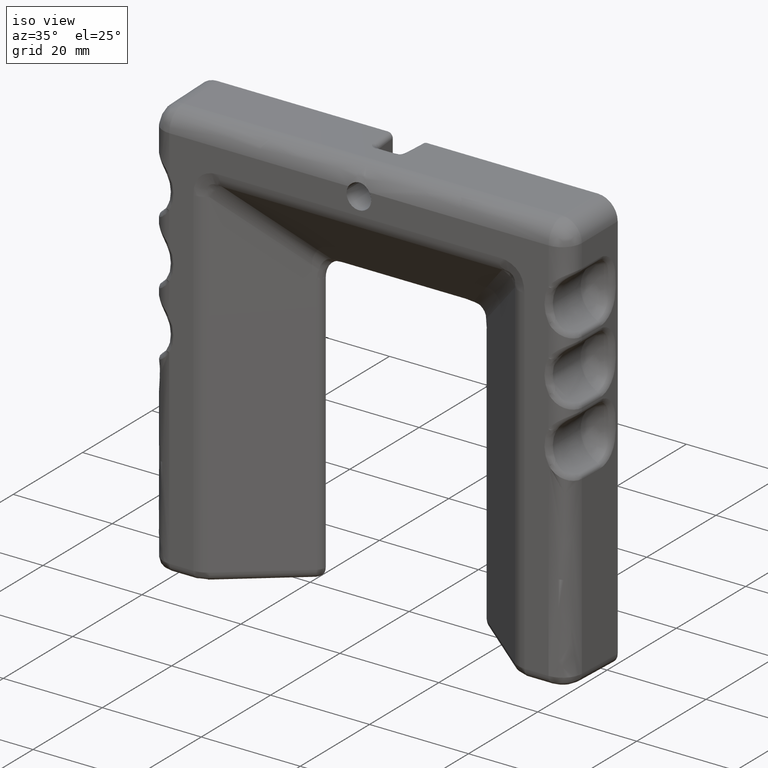
[diagram: clean part render]
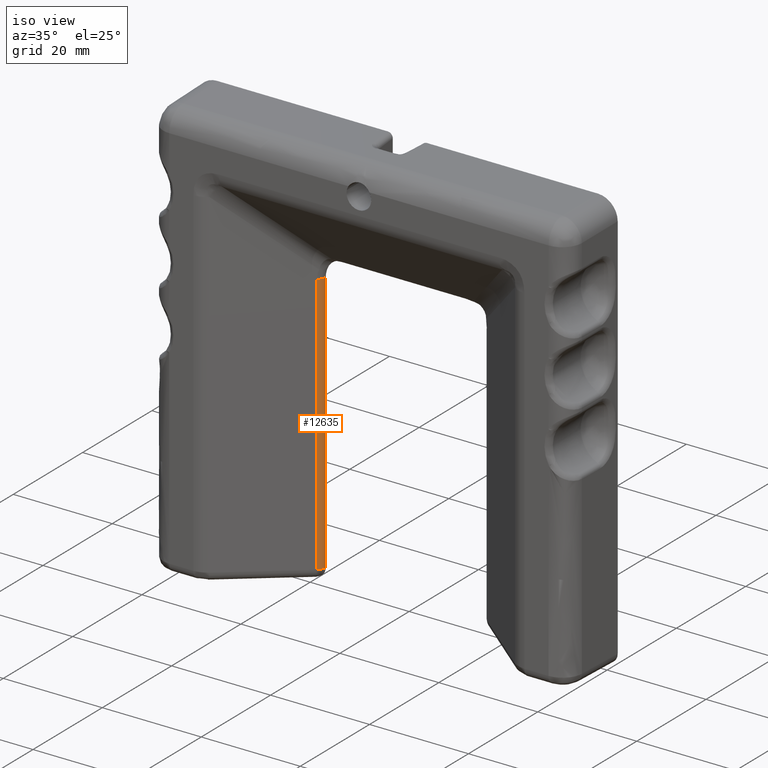
[diagram: same view with one face highlighted and labeled with its STEP entity id]
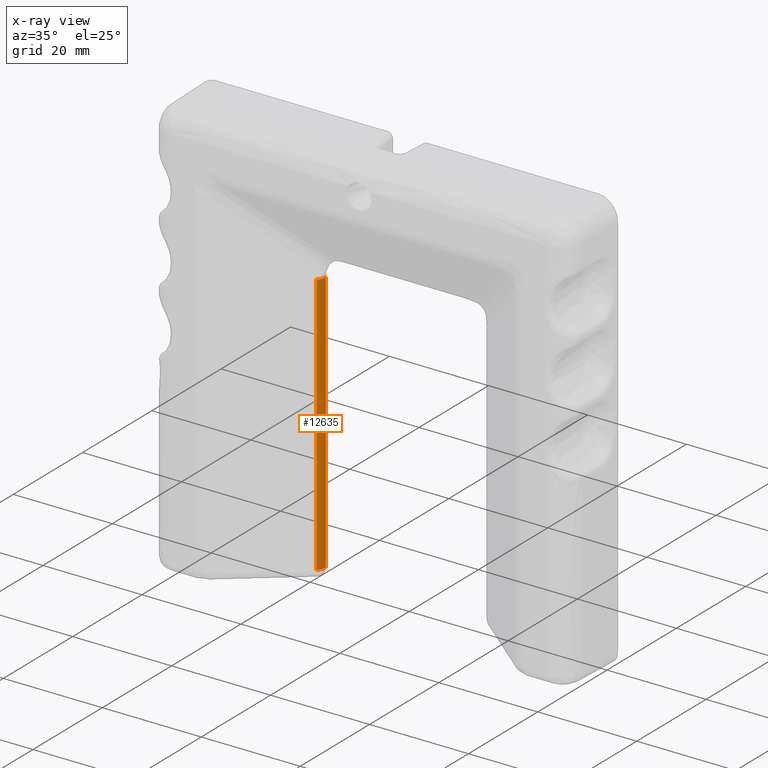
[diagram: x-ray of the same camera — body ghosted, the highlighted face saturated]
A machine part, iso view. The second image highlights one B-rep face of the part: STEP entity #12635.
The next image is the same camera in x-ray: the body ghosted, the highlighted face saturated — about 0% of this face is hidden behind the body in this view.
In plain terms, the highlighted face is a freeform B-spline surface patch.
Its self-contained STEP definition (entity closure, byte-faithful):
#11135=CARTESIAN_POINT('',(-17.214775476049599,-2.099489108959795,-56.998524003840998));
#11136=VERTEX_POINT('',#11135);
#11137=CARTESIAN_POINT('',(-17.214775476049649,-2.099489108959805,-4.0));
#11138=VERTEX_POINT('',#11137);
#11139=CARTESIAN_POINT('',(-17.214775476049599,-2.099489108959795,-56.998524003840998));
#11140=CARTESIAN_POINT('',(-17.214775476049649,-2.099489108959805,-4.0));
#11141=QUASI_UNIFORM_CURVE('',1,(#11139,#11140),.UNSPECIFIED.,.F.,.U.);
#11142=EDGE_CURVE('',#11136,#11138,#11141,.T.);
#12591=CARTESIAN_POINT('',(-17.255329003231449,-2.132607255475762,-2.675036899903974));
#12592=CARTESIAN_POINT('',(-17.255329003231449,-2.132607255475762,-58.356611181439433));
#12593=CARTESIAN_POINT('',(-16.458857230149334,-1.499362582810406,-2.675036899903974));
#12594=CARTESIAN_POINT('',(-16.458857230149334,-1.499362582810406,-58.356611181439426));
#12595=CARTESIAN_POINT('',(-16.501780245232840,-0.482738898474970,-2.675036899903974));
#12596=CARTESIAN_POINT('',(-16.501780245232840,-0.482738898474970,-58.356611181439433));
#12604=(BOUNDED_SURFACE()B_SPLINE_SURFACE(1,2,((#12591,#12593,#12595),(#12592,#12594,#12596)),.UNSPECIFIED.,.F.,.F.,.U.)B_SPLINE_SURFACE_WITH_KNOTS((2,2),(3,3),(0.0,55.681574281535461),(0.0,0.979837957355566),.UNSPECIFIED.)GEOMETRIC_REPRESENTATION_ITEM()RATIONAL_B_SPLINE_SURFACE(((1.0,0.889288925578041,0.995535677192587),(1.0,0.889288925578041,0.995535677192587)))REPRESENTATION_ITEM('')SURFACE());
#12605=CARTESIAN_POINT('',(-16.500000000001751,-0.567106022710928,-4.0));
#12606=VERTEX_POINT('',#12605);
#12607=CARTESIAN_POINT('',(-16.500000000001751,-0.567106022710928,-4.0));
#12608=CARTESIAN_POINT('',(-16.499797711566000,-0.803550900451235,-4.000000000000005));
#12609=CARTESIAN_POINT('',(-16.568557641115781,-1.185287078652993,-3.999999999999992));
#12610=CARTESIAN_POINT('',(-16.830414343610069,-1.708873165114665,-4.000000000000006));
#12611=CARTESIAN_POINT('',(-17.061437818199071,-1.971005385553694,-3.999999999999996));
#12612=CARTESIAN_POINT('',(-17.214775476049649,-2.099489108959805,-4.0));
#12613=B_SPLINE_CURVE_WITH_KNOTS('',3,(#12607,#12608,#12609,#12610,#12611,#12612),.UNSPECIFIED.,.F.,.U.,(4,1,1,4),(0.000000036651583,0.709256785866880,1.145700511737208,1.745841118123991),.UNSPECIFIED.);
#12614=EDGE_CURVE('',#12606,#11138,#12613,.T.);
#12615=ORIENTED_EDGE('',*,*,#12614,.T.);
#12616=ORIENTED_EDGE('',*,*,#11142,.F.);
#12617=CARTESIAN_POINT('',(-16.500000000001751,-0.567106022710921,-56.998524003840899));
#12618=VERTEX_POINT('',#12617);
#12619=CARTESIAN_POINT('',(-17.214775476049599,-2.099489108959795,-56.998524003840998));
#12620=CARTESIAN_POINT('',(-17.061439281307241,-1.971003291210089,-56.998524003841013));
#12621=CARTESIAN_POINT('',(-16.806068689897501,-1.681295858083649,-56.998524003841020));
#12622=CARTESIAN_POINT('',(-16.557755934117129,-1.148996185562549,-56.998524003840522));
#12623=CARTESIAN_POINT('',(-16.499916571013038,-0.767155791245671,-56.998524003840998));
#12624=CARTESIAN_POINT('',(-16.500000000001751,-0.567106022710921,-56.998524003840899));
#12625=B_SPLINE_CURVE_WITH_KNOTS('',3,(#12619,#12620,#12621,#12622,#12623,#12624),.UNSPECIFIED.,.F.,.U.,(4,1,1,4),(0.000000036652134,0.600140643038721,1.145700511737359,1.745841118123952),.UNSPECIFIED.);
#12626=EDGE_CURVE('',#11136,#12618,#12625,.T.);
#12627=ORIENTED_EDGE('',*,*,#12626,.T.);
#12628=CARTESIAN_POINT('',(-16.500000000001751,-0.567106022710928,-4.0));
#12629=CARTESIAN_POINT('',(-16.500000000001751,-0.567106022710921,-56.998524003840899));
#12630=QUASI_UNIFORM_CURVE('',1,(#12628,#12629),.UNSPECIFIED.,.F.,.U.);
#12631=EDGE_CURVE('',#12606,#12618,#12630,.T.);
#12632=ORIENTED_EDGE('',*,*,#12631,.F.);
#12633=EDGE_LOOP('',(#12615,#12616,#12627,#12632));
#12634=FACE_OUTER_BOUND('',#12633,.T.);
#12635=ADVANCED_FACE('',(#12634),#12604,.T.);